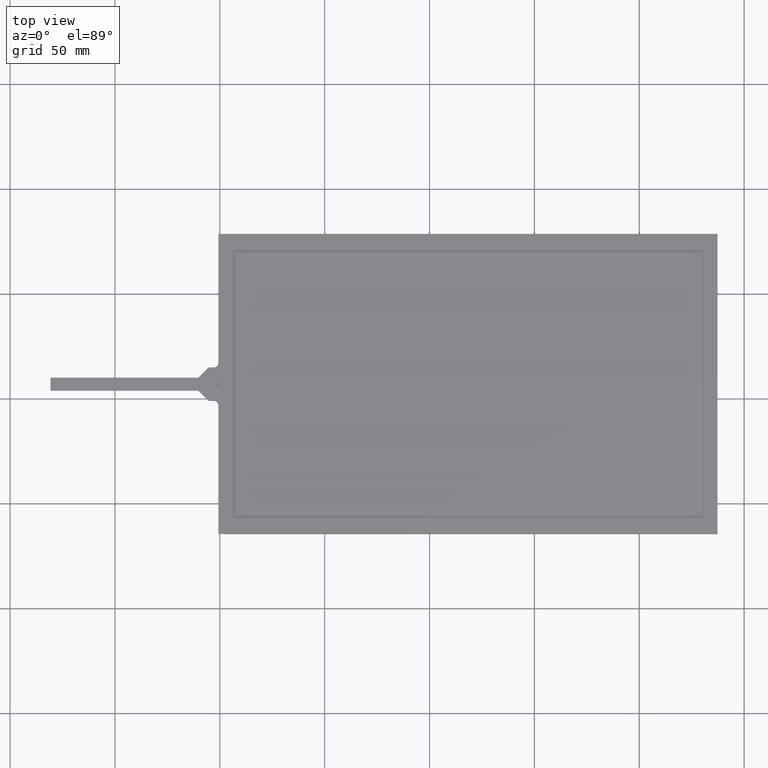
[diagram: clean part render]
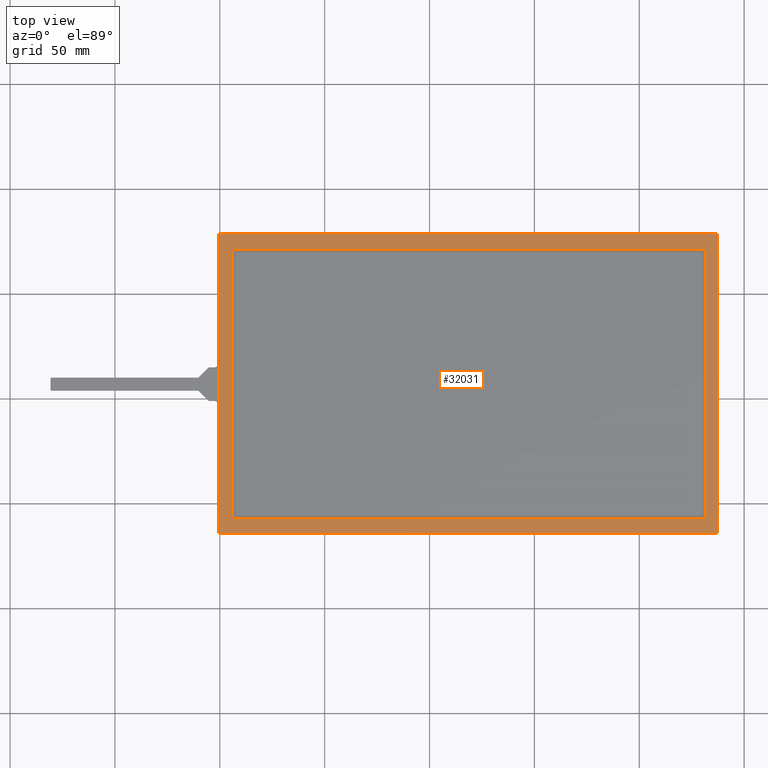
[diagram: same view with one face highlighted and labeled with its STEP entity id]
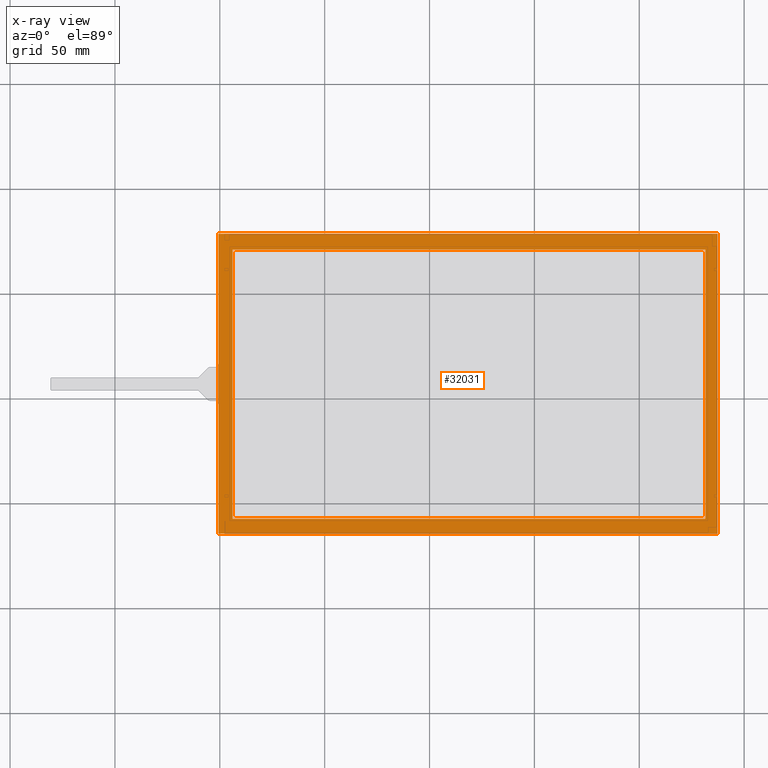
[diagram: x-ray of the same camera — body ghosted, the highlighted face saturated]
A machine part, top view. The second image highlights one B-rep face of the part: STEP entity #32031.
The next image is the same camera in x-ray: the body ghosted, the highlighted face saturated — about 0% of this face is hidden behind the body in this view.
In plain terms, the highlighted planar face has unit normal (-0, -0, 1).
Its self-contained STEP definition (entity closure, byte-faithful):
#1773=FACE_BOUND('',#3676,.T.);
#1998=FACE_OUTER_BOUND('',#3675,.T.);
#3675=EDGE_LOOP('',(#21495,#21496,#21497,#21498));
#3676=EDGE_LOOP('',(#21499,#21500,#21501,#21502));
#5589=LINE('',#46163,#9317);
#5593=LINE('',#46171,#9321);
#5596=LINE('',#46177,#9324);
#5599=LINE('',#46182,#9327);
#5625=LINE('',#46237,#9353);
#5626=LINE('',#46239,#9354);
#5627=LINE('',#46241,#9355);
#5628=LINE('',#46242,#9356);
#9317=VECTOR('',#36816,10.);
#9321=VECTOR('',#36822,10.);
#9324=VECTOR('',#36827,10.);
#9327=VECTOR('',#36832,10.);
#9353=VECTOR('',#36880,10.);
#9354=VECTOR('',#36881,10.);
#9355=VECTOR('',#36882,10.);
#9356=VECTOR('',#36883,10.);
#12988=VERTEX_POINT('',#46161);
#12989=VERTEX_POINT('',#46162);
#12992=VERTEX_POINT('',#46170);
#12994=VERTEX_POINT('',#46176);
#13012=VERTEX_POINT('',#46235);
#13013=VERTEX_POINT('',#46236);
#13014=VERTEX_POINT('',#46238);
#13015=VERTEX_POINT('',#46240);
#16314=EDGE_CURVE('',#12988,#12989,#5589,.T.);
#16318=EDGE_CURVE('',#12992,#12988,#5593,.T.);
#16321=EDGE_CURVE('',#12994,#12992,#5596,.T.);
#16324=EDGE_CURVE('',#12989,#12994,#5599,.T.);
#16350=EDGE_CURVE('',#13012,#13013,#5625,.T.);
#16351=EDGE_CURVE('',#13014,#13012,#5626,.T.);
#16352=EDGE_CURVE('',#13015,#13014,#5627,.T.);
#16353=EDGE_CURVE('',#13013,#13015,#5628,.T.);
#21495=ORIENTED_EDGE('',*,*,#16350,.F.);
#21496=ORIENTED_EDGE('',*,*,#16351,.F.);
#21497=ORIENTED_EDGE('',*,*,#16352,.F.);
#21498=ORIENTED_EDGE('',*,*,#16353,.F.);
#21499=ORIENTED_EDGE('',*,*,#16314,.T.);
#21500=ORIENTED_EDGE('',*,*,#16324,.T.);
#21501=ORIENTED_EDGE('',*,*,#16321,.T.);
#21502=ORIENTED_EDGE('',*,*,#16318,.T.);
#30918=PLANE('',#33739);
#32031=ADVANCED_FACE('',(#1998,#1773),#30918,.T.);
#33739=AXIS2_PLACEMENT_3D('',#46234,#36878,#36879);
#36816=DIRECTION('',(4.19803081187858E-16,-1.,-4.5632242678808E-17));
#36822=DIRECTION('',(1.,4.19803081187858E-16,7.85439421835399E-15));
#36827=DIRECTION('',(-6.96321891804336E-16,1.,4.56322426788059E-17));
#36832=DIRECTION('',(-1.,-5.77477219249304E-16,-7.85439421835399E-15));
#36878=DIRECTION('center_axis',(-7.85439421835399E-15,-4.56322426788113E-17,
1.));
#36879=DIRECTION('ref_axis',(1.,4.19803081187858E-16,7.85439421835399E-15));
#36880=DIRECTION('',(1.,4.19803081187858E-16,7.85439421835399E-15));
#36881=DIRECTION('',(-5.44023839187876E-16,1.,4.56322426788071E-17));
#36882=DIRECTION('',(-1.,-4.94439923179465E-16,-7.85439421835399E-15));
#36883=DIRECTION('',(4.19803081187858E-16,-1.,-4.5632242678808E-17));
#46161=CARTESIAN_POINT('',(-168.554560013878,121.113580187365,-83.3470944214054));
#46162=CARTESIAN_POINT('',(-168.554560013878,-7.36641981263455,-83.3470944214054));
#46163=CARTESIAN_POINT('',(-168.554560013878,89.0685801873654,-83.3470944214054));
#46170=CARTESIAN_POINT('',(-393.874560013878,121.113580187365,-83.3470944214072));
#46171=CARTESIAN_POINT('',(-337.794560013878,121.113580187365,-83.3470944214068));
#46176=CARTESIAN_POINT('',(-393.874560013878,-7.36641981263467,-83.3470944214072));
#46177=CARTESIAN_POINT('',(-393.874560013878,24.8285801873653,-83.3470944214072));
#46182=CARTESIAN_POINT('',(-225.134560013878,-7.36641981263458,-83.3470944214059));
#46234=CARTESIAN_POINT('Origin',(-281.714560013878,57.0235801873654,-83.3470944214063));
#46235=CARTESIAN_POINT('',(-400.714560013878,128.523580187365,-83.3470944214073));
#46236=CARTESIAN_POINT('',(-162.714560013878,128.523580187365,-83.3470944214054));
#46237=CARTESIAN_POINT('',(-400.714560013878,128.523580187365,-83.3470944214073));
#46238=CARTESIAN_POINT('',(-400.714560013878,-14.4764198126347,-83.3470944214073));
#46239=CARTESIAN_POINT('',(-400.714560013878,-14.4764198126347,-83.3470944214073));
#46240=CARTESIAN_POINT('',(-162.714560013878,-14.4764198126346,-83.3470944214054));
#46241=CARTESIAN_POINT('',(-162.714560013878,-14.4764198126346,-83.3470944214054));
#46242=CARTESIAN_POINT('',(-162.714560013878,128.523580187365,-83.3470944214054));